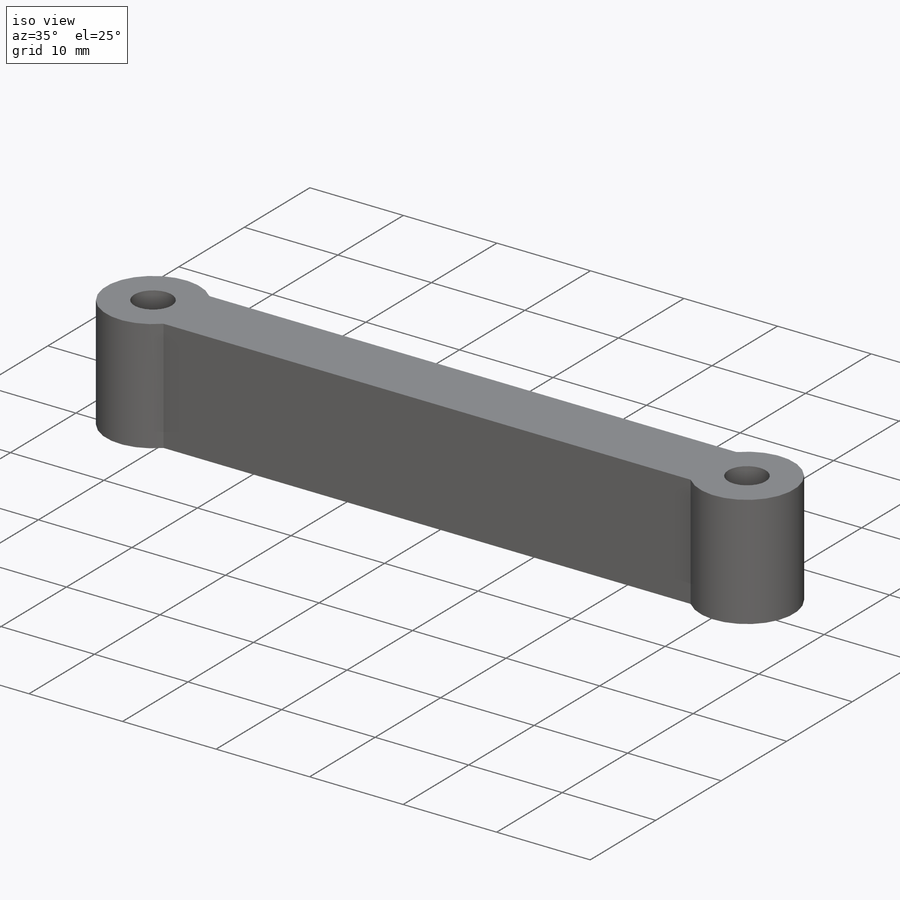
[diagram: iso view]
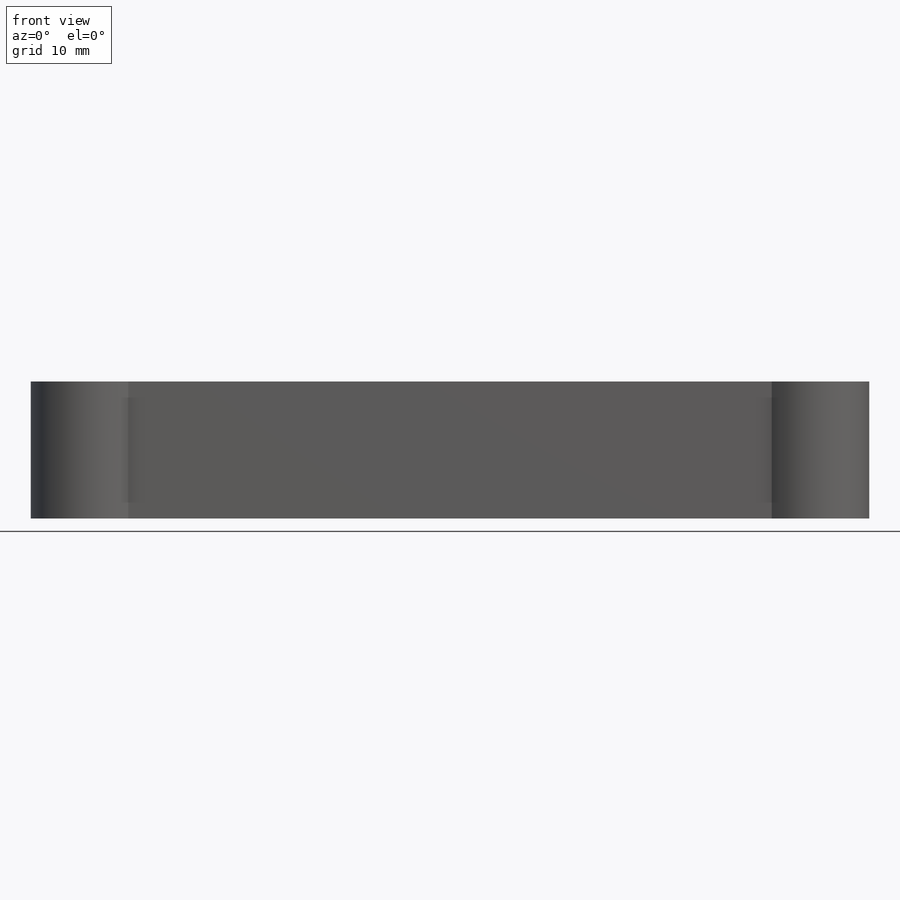
[diagram: front view]
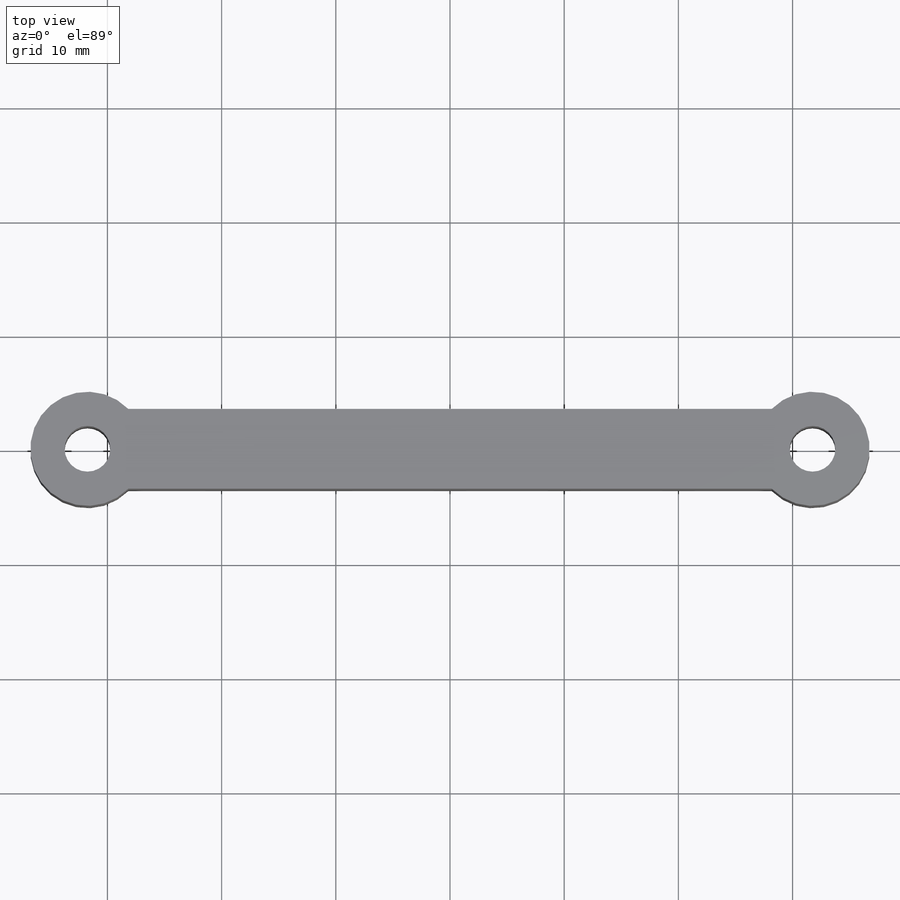
[diagram: top view]
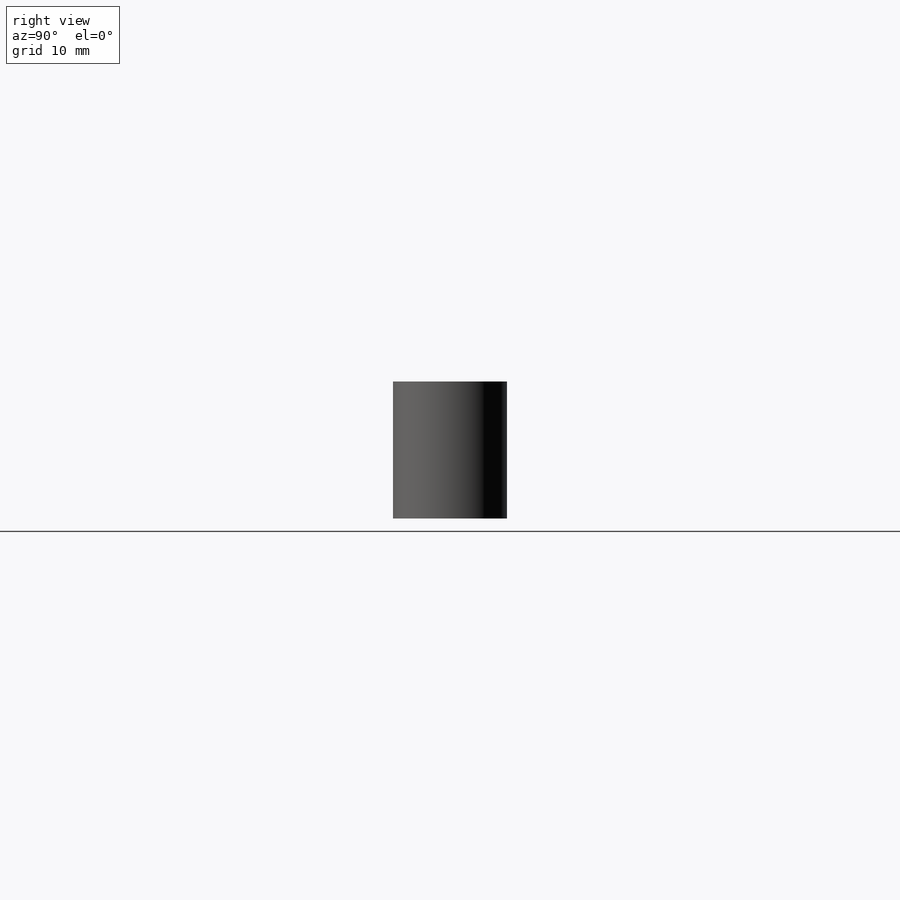
[diagram: right view]
SOLIDWORKS PART (.sldprt)
format: sldprt  version: not decoded by parser v0  size: 352,768 bytes
history: native  units: mm
features: sketch x7, extrude x5, plane x3, cut_extrude x2, material x1 (+10 scaffold rows collapsed)
feature tree (28):
  scaffold x10  (default folders/planes/origin — collapsed)
  material  "Material <sin especificar>"
  plane  "Alzado"
  plane  "Planta"
  plane  "Vista lateral"
  sketch  "Croquis1"  dims[D1=5.0mm D2=56.0mm]
  extrude  "Saliente-Extruir1"  Depth=12mm
  sketch  "Croquis2"  dims[D2=8.0mm D3=8.0mm D1=63.5mm D4=59.75mm]
  extrude  "Saliente-Extruir2"  Depth=12mm
  sketch  "Croquis3"  dims[D1=5.5mm]
  extrude  "Saliente-Extruir3"  Depth=12mm
  sketch  "Croquis4"  dims[D1=4.0mm D2=4.0mm D3=63.5mm]
  cut_extrude  "Cortar-Extruir1"  Depth=12mm
  sketch  "Croquis5"  dims[D1=10.0mm D2=10.0mm]
  extrude  "Saliente-Extruir4"  Depth=12mm
  sketch  "Croquis6"  dims[D1=7.0mm]
  extrude  "Saliente-Extruir5"  Depth=12mm
  sketch  "Croquis7"  dims[D1=4.0mm D2=4.0mm D3=63.5mm]
  cut_extrude  "Cortar-Extruir2"  Depth=12mm
decode coverage: 14 of 14 modeling features carry decoded parameters
note: suppression state not decoded; provenance and decode notes live in map.json
